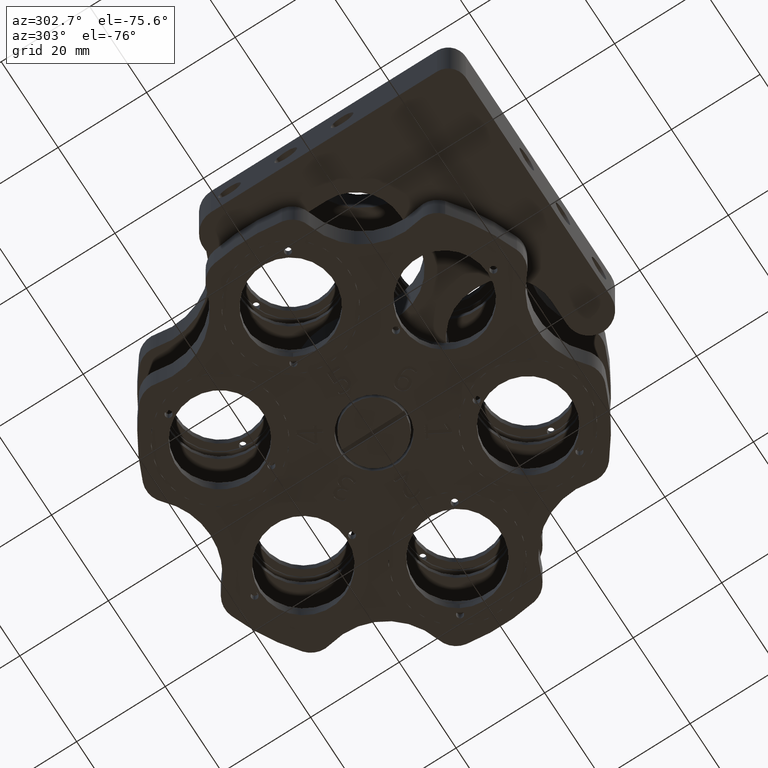
[diagram: clean part render]
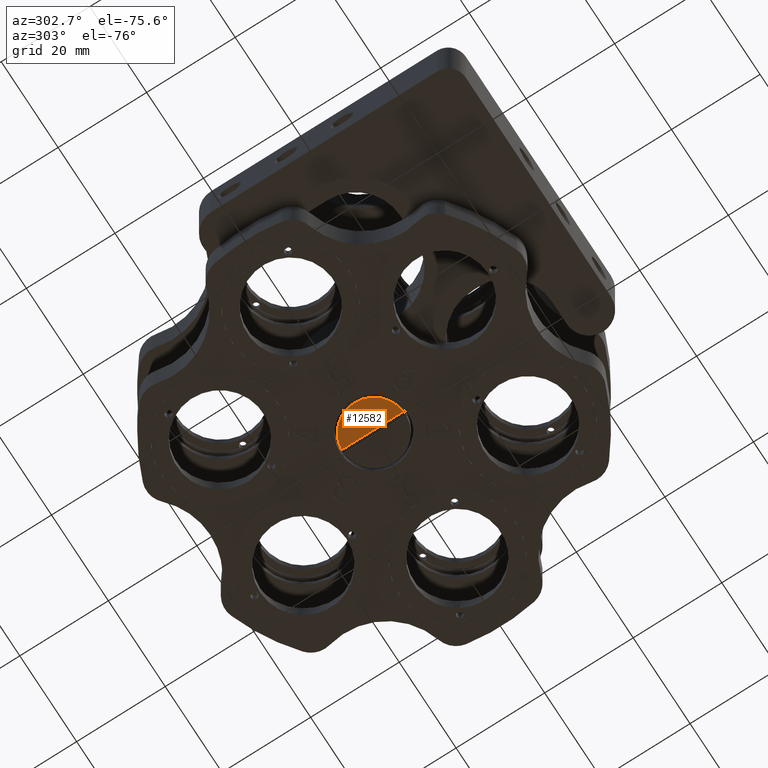
[diagram: same view with one face highlighted and labeled with its STEP entity id]
A machine part, auxiliary view. The second image highlights one B-rep face of the part: STEP entity #12582.
In plain terms, the highlighted planar face has unit normal (-0, 0, 1).
Its self-contained STEP definition (entity closure, byte-faithful):
#2246 = DIRECTION ( 'NONE',  ( 1.000000000000000000, 1.276756478318930200E-015, 1.183191958029215000E-031 ) ) ;
#2560 = AXIS2_PLACEMENT_3D ( 'NONE', #6523, #10320, #2246 ) ;
#3460 = DIRECTION ( 'NONE',  ( -2.507130556659789300E-031, 2.449212707644749600E-016, 1.000000000000000000 ) ) ;
#5325 = CARTESIAN_POINT ( 'NONE',  ( -0.4999999999999846200, 1.557705787275098800E-014, -27.00000000000000000 ) ) ;
#6254 = CIRCLE ( 'NONE', #20882, 6.999999999999991100 ) ;
#6321 = CARTESIAN_POINT ( 'NONE',  ( 1.431146867680866500E-014, 1.621543611191045300E-014, -27.00000000000000000 ) ) ;
#6523 = CARTESIAN_POINT ( 'NONE',  ( 1.431146867680866500E-014, 1.621543611191045300E-014, -27.00000000000000000 ) ) ;
#6673 = EDGE_CURVE ( 'NONE', #7000, #25595, #6254, .T. ) ;
#7000 = VERTEX_POINT ( 'NONE', #16235 ) ;
#8226 = PLANE ( 'NONE',  #2560 ) ;
#9162 = LINE ( 'NONE', #5325, #14025 ) ;
#9187 = EDGE_LOOP ( 'NONE', ( #23911, #19366, #10107 ) ) ;
#9551 = DIRECTION ( 'NONE',  ( 1.000000000000000000, 1.276756478318930600E-015, 0.0000000000000000000 ) ) ;
#9714 = VERTEX_POINT ( 'NONE', #17379 ) ;
#10107 = ORIENTED_EDGE ( 'NONE', *, *, #6673, .F. ) ;
#10152 = EDGE_CURVE ( 'NONE', #9714, #25595, #9162, .T. ) ;
#10320 = DIRECTION ( 'NONE',  ( -4.310240149295696600E-031, 2.449212707644749100E-016, 1.000000000000000000 ) ) ;
#10753 = AXIS2_PLACEMENT_3D ( 'NONE', #6321, #24838, #14770 ) ;
#11543 = CARTESIAN_POINT ( 'NONE',  ( 1.431146867680866500E-014, 1.621543611191045300E-014, -27.00000000000000000 ) ) ;
#12582 = ADVANCED_FACE ( 'NONE', ( #12956 ), #8226, .F. ) ;
#12956 = FACE_OUTER_BOUND ( 'NONE', #9187, .T. ) ;
#14025 = VECTOR ( 'NONE', #21758, 1000.000000000000000 ) ;
#14770 = DIRECTION ( 'NONE',  ( 1.000000000000000000, 1.276756478318930600E-015, 0.0000000000000000000 ) ) ;
#16235 = CARTESIAN_POINT ( 'NONE',  ( -6.999999999999984900, 7.706752987515771600E-015, -27.00000000000000000 ) ) ;
#17379 = CARTESIAN_POINT ( 'NONE',  ( -0.4999999999999782400, 6.982120021884480100, -27.00000000000000000 ) ) ;
#18830 = CARTESIAN_POINT ( 'NONE',  ( -0.4999999999999910100, -6.982120021884441000, -27.00000000000000000 ) ) ;
#19366 = ORIENTED_EDGE ( 'NONE', *, *, #10152, .T. ) ;
#20882 = AXIS2_PLACEMENT_3D ( 'NONE', #11543, #3460, #9551 ) ;
#21758 = DIRECTION ( 'NONE',  ( -9.436895709313830600E-016, -1.000000000000000000, 2.449212707644741700E-016 ) ) ;
#23536 = CIRCLE ( 'NONE', #10753, 6.999999999999991100 ) ;
#23911 = ORIENTED_EDGE ( 'NONE', *, *, #25320, .F. ) ;
#24838 = DIRECTION ( 'NONE',  ( -2.507130556659789300E-031, 2.449212707644749600E-016, 1.000000000000000000 ) ) ;
#25320 = EDGE_CURVE ( 'NONE', #9714, #7000, #23536, .T. ) ;
#25595 = VERTEX_POINT ( 'NONE', #18830 ) ;